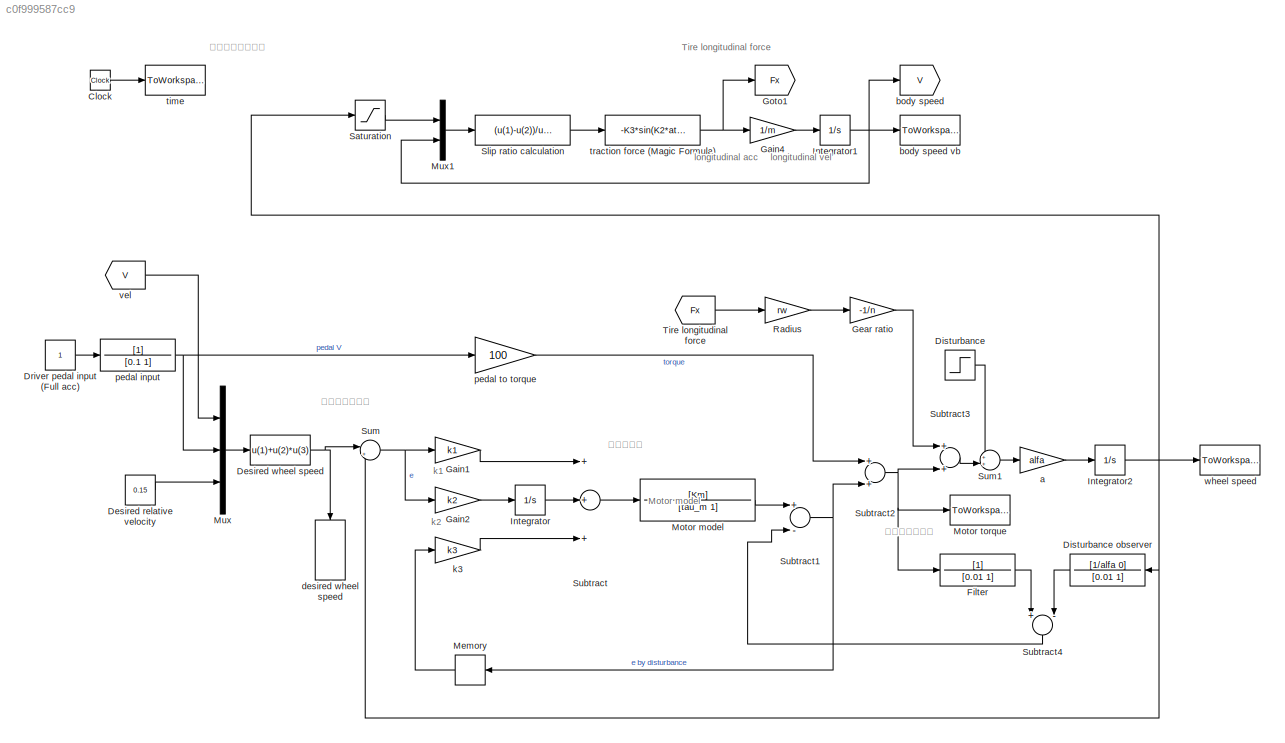
MODEL slx_c0f999587cc9
KIND model
CONFIG AbsTol = auto
CONFIG EnableMultiTasking = off
CONFIG FixedStep = auto
CONFIG MaxStep = auto
CONFIG MinStep = auto
CONFIG RelTol = 1e-3
CONFIG SampleTimeConstraint = Unconstrained
CONFIG Solver = VariableStepAuto
CONFIG SolverName = VariableStepAuto
CONFIG StartTime = 0.0
CONFIG StopTime = 10.0
BLOCK [Clock] Clock
BLOCK [Constant] Desired relative velocity
  Value = 0.15
BLOCK [Fcn] Desired wheel speed
  Expr = u(1)+u(2)*u(3)
BLOCK [Step] Disturbance
  After = 10
  SampleTime = 0
BLOCK [TransferFcn] Disturbance observer
  Denominator = [0.01 1]
  Numerator = [1/alfa 0]
BLOCK [Constant] Driver pedal input (Full acc)
BLOCK [TransferFcn] Filter
  Denominator = [0.01 1]
BLOCK [Gain] Gain1
  Gain = k1
  OutDataTypeStr = Inherit: Inherit via internal rule
  ParamDataTypeStr = Inherit: Inherit via internal rule
  SaturateOnIntegerOverflow = off
BLOCK [Gain] Gain2
  Gain = k2
  OutDataTypeStr = Inherit: Inherit via internal rule
  ParamDataTypeStr = Inherit: Inherit via internal rule
  SaturateOnIntegerOverflow = off
BLOCK [Gain] Gain4
  Gain = 1/m
  OutDataTypeStr = Inherit: Inherit via internal rule
  ParamDataTypeStr = Inherit: Inherit via internal rule
  SaturateOnIntegerOverflow = off
BLOCK [Gain] Gear ratio
  Gain = -1/n
  OutDataTypeStr = Inherit: Inherit via internal rule
  ParamDataTypeStr = Inherit: Inherit via internal rule
  SaturateOnIntegerOverflow = off
BLOCK [Goto] Goto1
  GotoTag = Fx
BLOCK [Integrator] Integrator
  LimitOutput = on
  LowerSaturationLimit = 0
  Ports = [1, 1]
BLOCK [Integrator] Integrator1
  Ports = [1, 1]
BLOCK [Integrator] Integrator2
  LimitOutput = on
  LowerSaturationLimit = 0
  Ports = [1, 1]
BLOCK [Memory] Memory
BLOCK [TransferFcn] Motor model
  Denominator = [tau_m 1]
  Numerator = [Km]
BLOCK [ToWorkspace] Motor torque
  FixptAsFi = on
  MaxDataPoints = inf
  Ports = [1]
  SampleTime = -1
  Save2DSignal = 3-D array (concatenate along third dimension)
  SaveFormat = Timeseries
  VariableName = Tm
BLOCK [Mux] Mux
  DisplayOption = bar
  Inputs = 3
  Ports = [3, 1]
BLOCK [Mux] Mux1
  DisplayOption = bar
  Inputs = 2
  Ports = [2, 1]
BLOCK [Gain] Radius
  Gain = rw
  OutDataTypeStr = Inherit: Inherit via internal rule
  ParamDataTypeStr = Inherit: Inherit via internal rule
  SaturateOnIntegerOverflow = off
BLOCK [Saturate] Saturation
  InputPortMap = u0
  LowerLimit = 0.001
  Ports = [1, 1]
  UpperLimit = inf
BLOCK [Fcn] Slip ratio calculation
  Expr = (u(1)-u(2))/u(1)
BLOCK [Sum] Subtract
  InputSameDT = off
  Inputs = +++
  OutDataTypeStr = Inherit: Inherit via internal rule
  Ports = [3, 1]
  SaturateOnIntegerOverflow = off
BLOCK [Sum] Subtract1
  InputSameDT = off
  Inputs = +-
  OutDataTypeStr = Inherit: Inherit via internal rule
  Ports = [2, 1]
  SaturateOnIntegerOverflow = off
BLOCK [Sum] Subtract2
  InputSameDT = off
  OutDataTypeStr = Inherit: Inherit via internal rule
  Ports = [2, 1]
  SaturateOnIntegerOverflow = off
BLOCK [Sum] Subtract3
  InputSameDT = off
  OutDataTypeStr = Inherit: Inherit via internal rule
  Ports = [2, 1]
  SaturateOnIntegerOverflow = off
BLOCK [Sum] Subtract4
  InputSameDT = off
  Inputs = +-
  OutDataTypeStr = Inherit: Inherit via internal rule
  Ports = [2, 1]
  SaturateOnIntegerOverflow = off
BLOCK [Sum] Sum
  IconShape = round
  InputSameDT = off
  Inputs = |+-
  OutDataTypeStr = Inherit: Inherit via internal rule
  Ports = [2, 1]
  SaturateOnIntegerOverflow = off
BLOCK [Sum] Sum1
  IconShape = round
  InputSameDT = off
  Inputs = ++|
  OutDataTypeStr = Inherit: Inherit via internal rule
  Ports = [2, 1]
  SaturateOnIntegerOverflow = off
BLOCK [From] Tire longitudinal force
  GotoTag = Fx
BLOCK [Gain] a
  Gain = alfa
  OutDataTypeStr = Inherit: Inherit via internal rule
  ParamDataTypeStr = Inherit: Inherit via internal rule
  SaturateOnIntegerOverflow = off
BLOCK [Goto] body speed
  GotoTag = V
BLOCK [ToWorkspace] body speed vb
  FixptAsFi = on
  MaxDataPoints = inf
  Ports = [1]
  SampleTime = -1
  Save2DSignal = 3-D array (concatenate along third dimension)
  SaveFormat = Timeseries
  VariableName = vb
BLOCK [ToWorkspace] desired wheel speed
  FixptAsFi = on
  MaxDataPoints = inf
  Ports = [1]
  SampleTime = -1
  Save2DSignal = 3-D array (concatenate along third dimension)
  SaveFormat = Timeseries
  VariableName = vwd
BLOCK [Gain] k3 
  Gain = k3
  OutDataTypeStr = Inherit: Inherit via internal rule
  ParamDataTypeStr = Inherit: Inherit via internal rule
  SaturateOnIntegerOverflow = off
BLOCK [TransferFcn] pedal input
  Denominator = [0.1 1]
BLOCK [Gain] pedal to torque
  Gain = 100
  OutDataTypeStr = Inherit: Inherit via internal rule
  ParamDataTypeStr = Inherit: Inherit via internal rule
  SaturateOnIntegerOverflow = off
BLOCK [ToWorkspace] time
  FixptAsFi = on
  MaxDataPoints = inf
  Ports = [1]
  SampleTime = -1
  Save2DSignal = 3-D array (concatenate along third dimension)
  SaveFormat = Timeseries
  VariableName = t
BLOCK [Fcn] traction force (Magic Formula)
  Expr = -K3*sin(K2*atan(K1*(1-K4)*u(1)+K4*atan(K1*u(1))))*Fz
BLOCK [From] vel 
  GotoTag = V
BLOCK [ToWorkspace] wheel speed
  FixptAsFi = on
  MaxDataPoints = inf
  Ports = [1]
  SampleTime = -1
  Save2DSignal = 3-D array (concatenate along third dimension)
  SaveFormat = Timeseries
  VariableName = vw
ANNOTATION (root): Motor model
ANNOTATION (root): Tire longitudinal force
ANNOTATION (root): k1
ANNOTATION (root): k2
ANNOTATION (root): longitudinal acc
ANNOTATION (root): longitudinal vel
ANNOTATION (root): モータ特性
ANNOTATION (root): 外乱オブザーバ
ANNOTATION (root): 車両前後運動特性
ANNOTATION (root): 車輪速度制御器
LINE Clock:1 -> time:1
LINE Desired relative velocity:1 -> Mux:3
NET Desired wheel speed:1 -> Sum:1, desired wheel speed:1
LINE Disturbance observer:1 -> Subtract4:2
LINE Disturbance:1 -> Sum1:1
LINE Driver pedal input (Full acc):1 -> pedal input:1
LINE Filter:1 -> Subtract4:1
LINE Gain1:1 -> Subtract:1
LINE Gain2:1 -> Integrator:1
LINE Gain4:1 -> Integrator1:1
LINE Gear ratio:1 -> Subtract3:1
NET Integrator1:1 -> Mux1:2, body speed vb:1, body speed:1
NET Integrator2:1 -> Disturbance observer:1, Saturation:1, Sum:2, wheel speed:1
LINE Integrator:1 -> Subtract:2
LINE Memory:1 -> k3 :1
LINE Motor model:1 -> Subtract1:1
LINE Mux1:1 -> Slip ratio calculation:1
LINE Mux:1 -> Desired wheel speed:1
LINE Radius:1 -> Gear ratio:1
LINE Saturation:1 -> Mux1:1
LINE Slip ratio calculation:1 -> traction force (Magic Formula):1
NET Subtract1:1 -> Memory:1, Subtract2:2
NET Subtract2:1 -> Filter:1, Motor torque:1, Subtract3:2
LINE Subtract3:1 -> Sum1:2
LINE Subtract4:1 -> Subtract1:2
LINE Subtract:1 -> Motor model:1
LINE Sum1:1 -> a:1
NET Sum:1 -> Gain1:1, Gain2:1
LINE Tire longitudinal force:1 -> Radius:1
LINE a:1 -> Integrator2:1
LINE k3 :1 -> Subtract:3
NET pedal input:1 -> Mux:2, pedal to torque:1
LINE pedal to torque:1 -> Subtract2:1
NET traction force (Magic Formula):1 -> Gain4:1, Goto1:1
LINE vel :1 -> Mux:1
note: NET lines group one-source signal fan-out (src -> all destinations, sorted); 1:1 wires keep LINE
